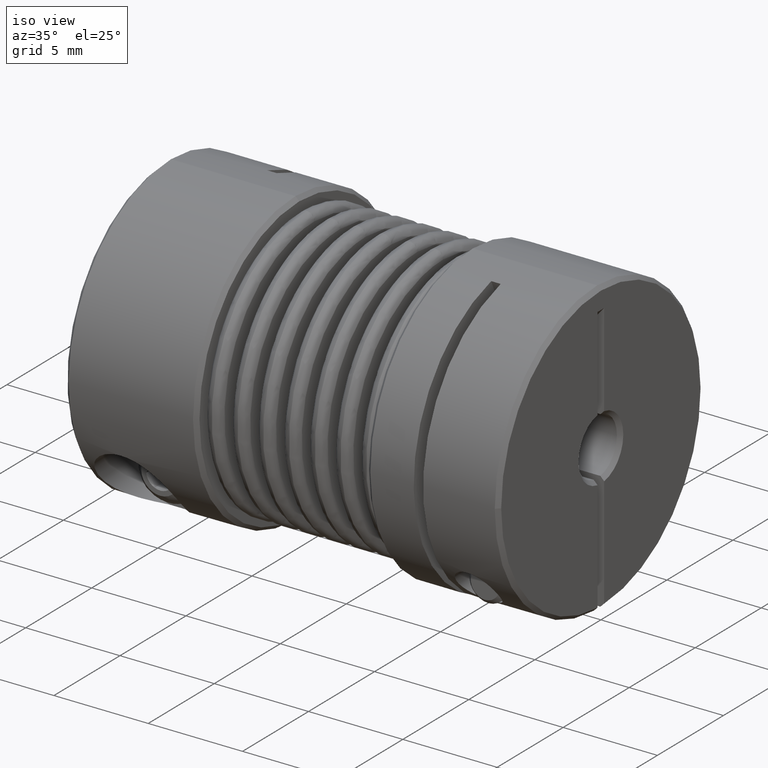
[diagram: clean part render]
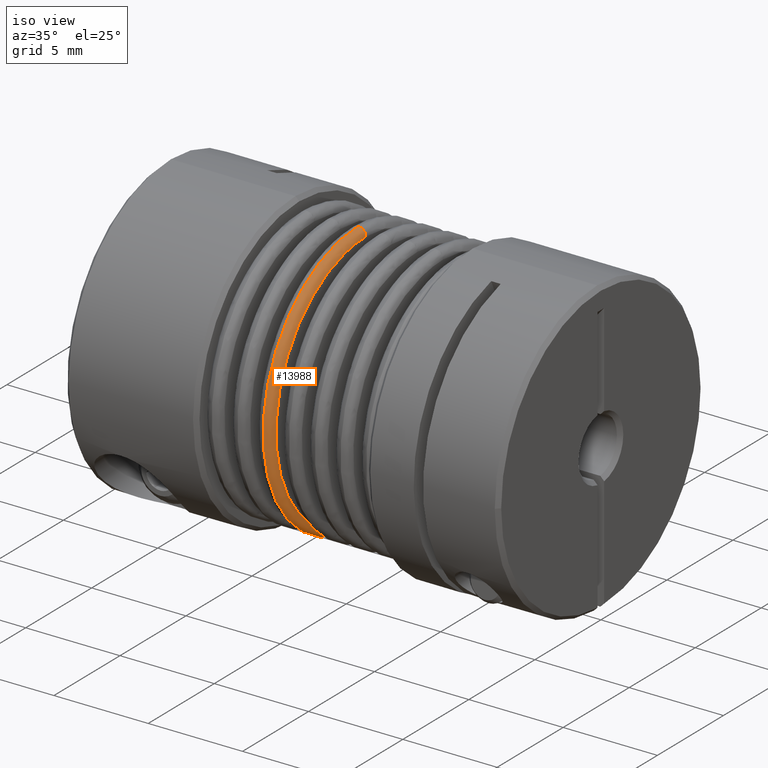
[diagram: same view with one face highlighted and labeled with its STEP entity id]
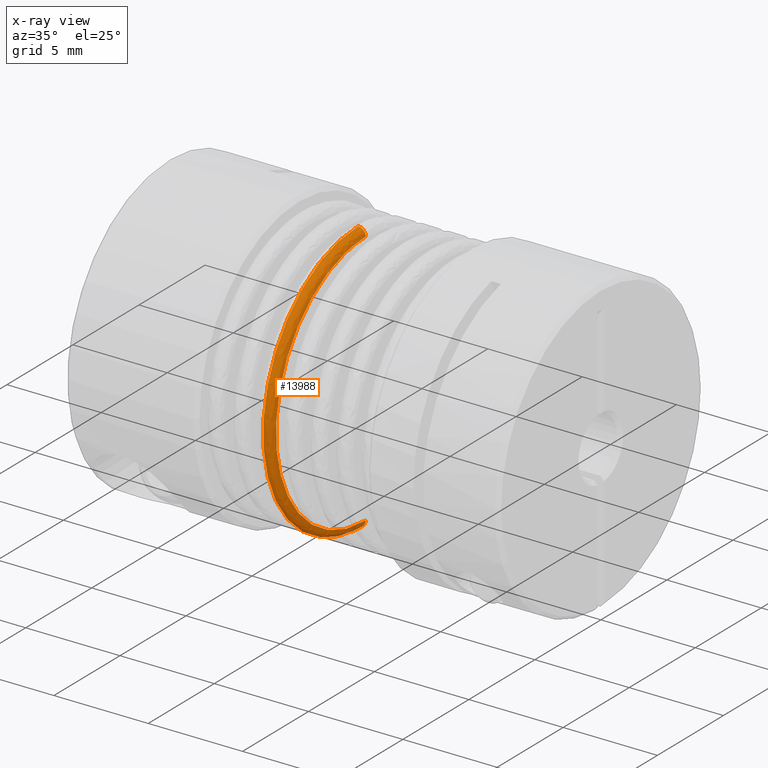
[diagram: x-ray of the same camera — body ghosted, the highlighted face saturated]
A machine part, iso view. The second image highlights one B-rep face of the part: STEP entity #13988.
The next image is the same camera in x-ray: the body ghosted, the highlighted face saturated — about 3% of this face is hidden behind the body in this view.
In plain terms, the highlighted face is a freeform B-spline surface patch.
Its self-contained STEP definition (entity closure, byte-faithful):
#14 = AXIS2_PLACEMENT_3D ( 'NONE', #4108, #7363, #657 ) ;
#70 = CARTESIAN_POINT ( 'NONE',  ( -0.4973340718487331835, -1.042857091304801728E-16, 0.2834645669262251810 ) ) ;
#657 = DIRECTION ( 'NONE',  ( 0.0000000000000000000, -7.427073164652321516E-17, 1.000000000000000000 ) ) ;
#1594 = CARTESIAN_POINT ( 'NONE',  ( -0.4908110236220475375, -0.5354330708617787149, 0.2677165354308893574 ) ) ;
#3315 = CARTESIAN_POINT ( 'NONE',  ( -0.4908110236220475375, -0.5354330708617786039, -0.2677165354308894685 ) ) ;
#3941 = CARTESIAN_POINT ( 'NONE',  ( -0.5065590551181105017, 4.170768007915254917E-17, -0.2834645669262251810 ) ) ;
#4108 = CARTESIAN_POINT ( 'NONE',  ( -0.5065590551181105017, -3.394334111838274778E-17, 0.2677165354301622169 ) ) ;
#4648 = CARTESIAN_POINT ( 'NONE',  ( -0.4908110236220475375, -0.5354330708617786039, -0.2677165354308894685 ) ) ;
#4970 = CIRCLE ( 'NONE', #14, 0.01574803149606296415 ) ;
#5640 = CIRCLE ( 'NONE', #17392, 0.01574803149606296415 ) ;
#6095 = VERTEX_POINT ( 'NONE', #3941 ) ;
#6280 = DIRECTION ( 'NONE',  ( 0.0000000000000000000, 1.967354115612585605E-16, -1.000000000000000000 ) ) ;
#6464 = CARTESIAN_POINT ( 'NONE',  ( -0.4908110236224735301, -0.5538830374005332402, -0.2769415187002667311 ) ) ;
#6552 = VERTEX_POINT ( 'NONE', #17561 ) ;
#7295 = VERTEX_POINT ( 'NONE', #12343 ) ;
#7363 = DIRECTION ( 'NONE',  ( -2.775557561562892584E-17, 1.000000000000000000, 7.427073164652317819E-17 ) ) ;
#7740 = CARTESIAN_POINT ( 'NONE',  ( -0.4973340718487331835, 4.196372479983865834E-17, -0.2834645669262251810 ) ) ;
#8039 = CARTESIAN_POINT ( 'NONE',  ( -0.5065590551181105017, -1.045417538511662943E-16, 0.2834645669262251810 ) ) ;
#8799 = EDGE_LOOP ( 'NONE', ( #19434, #10974, #18793, #11235 ) ) ;
#9024 = DIRECTION ( 'NONE',  ( 0.0000000000000000000, -7.427073164652315354E-17, 1.000000000000000000 ) ) ;
#9263 = CARTESIAN_POINT ( 'NONE',  ( -0.4908110236220475930, -3.350624543947208001E-17, 0.2677165354311802359 ) ) ;
#9317 = VERTEX_POINT ( 'NONE', #12264 ) ;
#9429 = CARTESIAN_POINT ( 'NONE',  ( -0.5065590551181105017, 3.860948462149494244E-17, -0.2677165354301622169 ) ) ;
#9618 = CARTESIAN_POINT ( 'NONE',  ( -0.5065590551181103907, -0.5669291338524502510, 0.2834645669262250145 ) ) ;
#10819 = CARTESIAN_POINT ( 'NONE',  ( -0.5065590551181105017, -1.405983815811225678E-17, 7.855217200461428011E-18 ) ) ;
#10892 = CARTESIAN_POINT ( 'NONE',  ( -0.4973340718487331835, -0.5669291338524502510, 0.2834645669262249035 ) ) ;
#10974 = ORIENTED_EDGE ( 'NONE', *, *, #13665, .T. ) ;
#11235 = ORIENTED_EDGE ( 'NONE', *, *, #14244, .F. ) ;
#12264 = CARTESIAN_POINT ( 'NONE',  ( -0.4908110236220475930, 3.959149234119690312E-17, -0.2677165354311802359 ) ) ;
#12343 = CARTESIAN_POINT ( 'NONE',  ( -0.4908110236220475930, -3.350624543947208001E-17, 0.2677165354311802359 ) ) ;
#12878 = CARTESIAN_POINT ( 'NONE',  ( -0.4908110236224735301, -0.5538830374005332402, 0.2769415187002665091 ) ) ;
#13665 = EDGE_CURVE ( 'NONE', #6095, #9317, #5640, .T. ) ;
#13692 =( BOUNDED_SURFACE ( )  B_SPLINE_SURFACE ( 3, 3, ( 
 ( #17623, #18890, #9618, #8039 ),
 ( #7740, #14453, #10892, #70 ),
 ( #14155, #6464, #12878, #17730 ),
 ( #19294, #3315, #16152, #14563 ) ),
 .UNSPECIFIED., .F., .F., .F. ) 
 B_SPLINE_SURFACE_WITH_KNOTS ( ( 4, 4 ),
 ( 4, 4 ),
 ( 0.0000000000000000000, 1.000000000000000000 ),
 ( 0.0000000000000000000, 1.000000000000000000 ),
 .UNSPECIFIED. ) 
 GEOMETRIC_REPRESENTATION_ITEM ( )  RATIONAL_B_SPLINE_SURFACE ( (
 ( 1.000000000000000000, 0.3333333333333334259, 0.3333333333333334259, 1.000000000000000000),
 ( 0.8047378541352487868, 0.2682459513784163363, 0.2682459513784163363, 0.8047378541352487868),
 ( 0.8047378541352487868, 0.2682459513784163363, 0.2682459513784163363, 0.8047378541352487868),
 ( 1.000000000000000000, 0.3333333333333334259, 0.3333333333333334259, 1.000000000000000000) ) ) 
 REPRESENTATION_ITEM ( '' )  SURFACE ( )  );
#13988 = ADVANCED_FACE ( 'NONE', ( #20769 ), #13692, .T. ) ;
#14155 = CARTESIAN_POINT ( 'NONE',  ( -0.4908110236224735301, 4.086146118075912246E-17, -0.2769415187002666756 ) ) ;
#14244 = EDGE_CURVE ( 'NONE', #6552, #7295, #4970, .T. ) ;
#14453 = CARTESIAN_POINT ( 'NONE',  ( -0.4973340718487331835, -0.5669291338524501400, -0.2834645669262252365 ) ) ;
#14480 = EDGE_CURVE ( 'NONE', #6095, #6552, #18816, .T. ) ;
#14563 = CARTESIAN_POINT ( 'NONE',  ( -0.4908110236220475375, -9.907788507830199906E-17, 0.2677165354308893574 ) ) ;
#14789 =( BOUNDED_CURVE ( )  B_SPLINE_CURVE ( 3, ( #20525, #4648, #1594, #9263 ),
 .UNSPECIFIED., .F., .F. ) 
 B_SPLINE_CURVE_WITH_KNOTS ( ( 4, 4 ),
 ( 0.0000000000000000000, 1.000000000000000000 ),
 .UNSPECIFIED. ) 
 CURVE ( )  GEOMETRIC_REPRESENTATION_ITEM ( )  RATIONAL_B_SPLINE_CURVE ( ( 1.000000000000000000, 0.3333333333333333703, 0.3333333333333333703, 1.000000000000000000 ) ) 
 REPRESENTATION_ITEM ( '' )  );
#15129 = AXIS2_PLACEMENT_3D ( 'NONE', #10819, #17248, #9024 ) ;
#16152 = CARTESIAN_POINT ( 'NONE',  ( -0.4908110236220475375, -0.5354330708617786039, 0.2677165354308891909 ) ) ;
#17248 = DIRECTION ( 'NONE',  ( -1.000000000000000000, -2.775557561562892584E-17, 1.550701171185240690E-17 ) ) ;
#17392 = AXIS2_PLACEMENT_3D ( 'NONE', #9429, #17444, #6280 ) ;
#17444 = DIRECTION ( 'NONE',  ( 2.775557561562892584E-17, -1.000000000000000000, -1.967354115612584866E-16 ) ) ;
#17561 = CARTESIAN_POINT ( 'NONE',  ( -0.5065590551181105017, -3.511295893958783114E-17, 0.2834645669262251810 ) ) ;
#17623 = CARTESIAN_POINT ( 'NONE',  ( -0.5065590551181105017, 4.170768007915255534E-17, -0.2834645669262251810 ) ) ;
#17730 = CARTESIAN_POINT ( 'NONE',  ( -0.4908110236224735301, -1.020225005817635791E-16, 0.2769415187002666756 ) ) ;
#18793 = ORIENTED_EDGE ( 'NONE', *, *, #18845, .T. ) ;
#18816 = CIRCLE ( 'NONE', #15129, 0.2834645669262251810 ) ;
#18845 = EDGE_CURVE ( 'NONE', #9317, #7295, #14789, .T. ) ;
#18890 = CARTESIAN_POINT ( 'NONE',  ( -0.5065590551181103907, -0.5669291338524501400, -0.2834645669262252921 ) ) ;
#19294 = CARTESIAN_POINT ( 'NONE',  ( -0.4908110236220475375, 3.904658030062428493E-17, -0.2677165354308893574 ) ) ;
#19434 = ORIENTED_EDGE ( 'NONE', *, *, #14480, .F. ) ;
#20525 = CARTESIAN_POINT ( 'NONE',  ( -0.4908110236220475930, 3.959149234119690312E-17, -0.2677165354311802359 ) ) ;
#20769 = FACE_OUTER_BOUND ( 'NONE', #8799, .T. ) ;